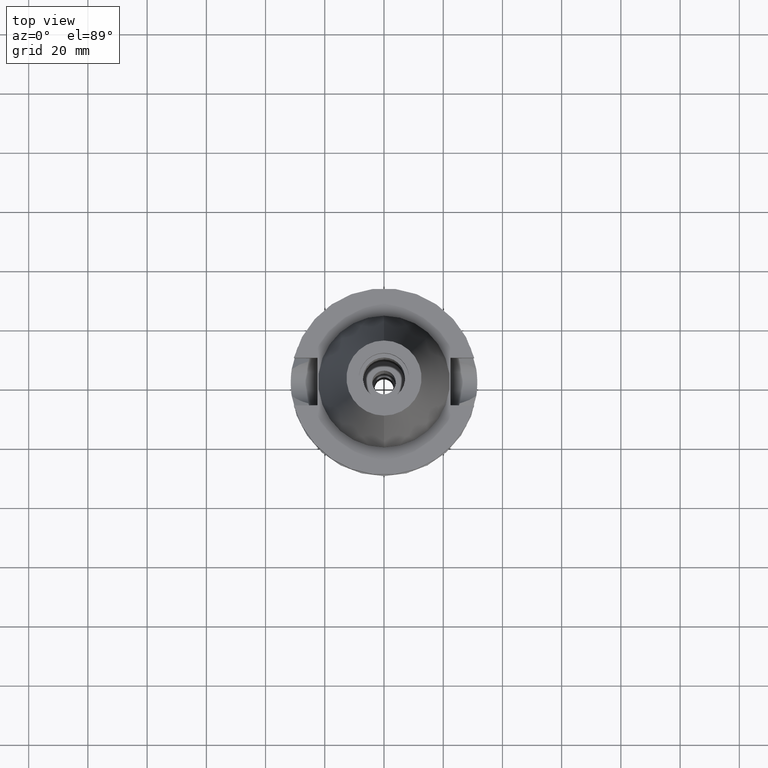
[diagram: clean part render]
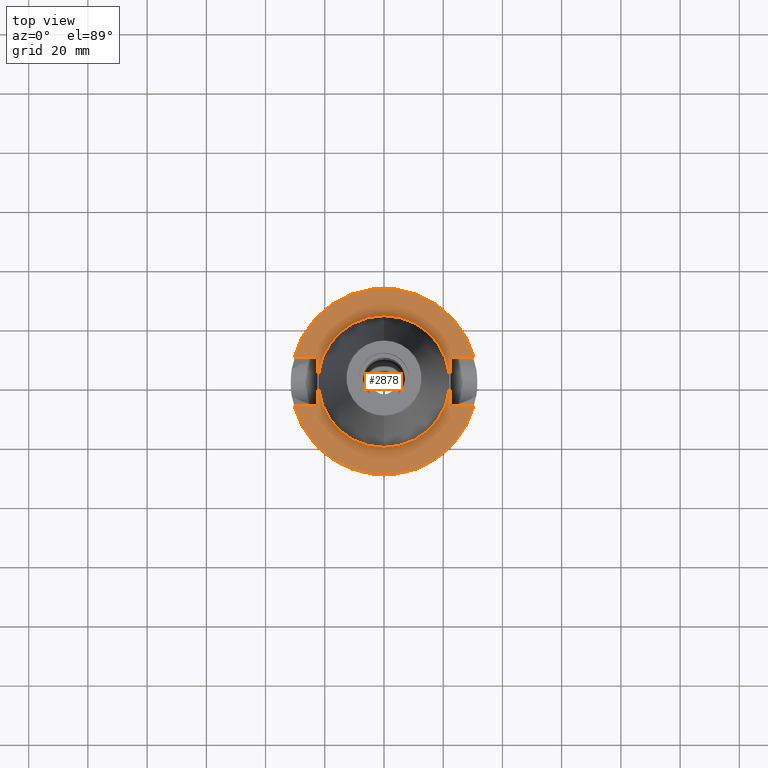
[diagram: same view with one face highlighted and labeled with its STEP entity id]
A machine part, top view. The second image highlights one B-rep face of the part: STEP entity #2878.
In plain terms, the highlighted planar face has unit normal (0, 0, -1).
Its self-contained STEP definition (entity closure, byte-faithful):
#113 = CIRCLE ( 'NONE', #1340, 22.22500000000000142 ) ;
#115 = EDGE_CURVE ( 'NONE', #835, #1891, #1197, .T. ) ;
#149 = ORIENTED_EDGE ( 'NONE', *, *, #3570, .T. ) ;
#204 = FACE_BOUND ( 'NONE', #3073, .T. ) ;
#222 = EDGE_CURVE ( 'NONE', #3625, #3260, #234, .T. ) ;
#234 = LINE ( 'NONE', #2678, #3585 ) ;
#252 = LINE ( 'NONE', #1075, #1988 ) ;
#257 = DIRECTION ( 'NONE',  ( 0.0000000000000000000, 0.0000000000000000000, -1.000000000000000000 ) ) ;
#428 = CARTESIAN_POINT ( 'NONE',  ( -22.50000000000000000, 8.050000000000000711, -2.000000000000000000 ) ) ;
#541 = DIRECTION ( 'NONE',  ( 0.0000000000000000000, 1.000000000000000000, 0.0000000000000000000 ) ) ;
#548 = DIRECTION ( 'NONE',  ( 0.0000000000000000000, 0.0000000000000000000, 1.000000000000000000 ) ) ;
#552 = ORIENTED_EDGE ( 'NONE', *, *, #222, .F. ) ;
#569 = VECTOR ( 'NONE', #1798, 1000.000000000000000 ) ;
#635 = DIRECTION ( 'NONE',  ( 0.0000000000000000000, 0.0000000000000000000, -1.000000000000000000 ) ) ;
#723 = ORIENTED_EDGE ( 'NONE', *, *, #754, .F. ) ;
#742 = ORIENTED_EDGE ( 'NONE', *, *, #2404, .F. ) ;
#754 = EDGE_CURVE ( 'NONE', #3260, #2262, #3112, .T. ) ;
#835 = VERTEX_POINT ( 'NONE', #2829 ) ;
#862 = VERTEX_POINT ( 'NONE', #949 ) ;
#909 = CARTESIAN_POINT ( 'NONE',  ( 30.45402272279000044, -8.050000000000000711, -2.000000000000000000 ) ) ;
#949 = CARTESIAN_POINT ( 'NONE',  ( 0.0000000000000000000, 22.22500000000000142, -2.000000000000000000 ) ) ;
#973 = EDGE_CURVE ( 'NONE', #1891, #1550, #1192, .T. ) ;
#1006 = DIRECTION ( 'NONE',  ( -1.000000000000000000, -3.550916904668000126E-14, 0.0000000000000000000 ) ) ;
#1058 = CARTESIAN_POINT ( 'NONE',  ( 0.0000000000000000000, 1.200153863163999924E-14, -2.000000000000000000 ) ) ;
#1075 = CARTESIAN_POINT ( 'NONE',  ( 22.50000000000000000, 8.050000000000000711, -2.000000000000000000 ) ) ;
#1084 = LINE ( 'NONE', #2212, #2506 ) ;
#1107 = AXIS2_PLACEMENT_3D ( 'NONE', #1058, #1637, #3306 ) ;
#1192 = LINE ( 'NONE', #3444, #3348 ) ;
#1197 = LINE ( 'NONE', #2328, #569 ) ;
#1216 = CARTESIAN_POINT ( 'NONE',  ( -30.45402272279000044, 8.050000000000000711, -2.000000000000000000 ) ) ;
#1283 = CARTESIAN_POINT ( 'NONE',  ( 0.0000000000000000000, 2.163583500053999606E-14, -2.000000000000000000 ) ) ;
#1292 = VERTEX_POINT ( 'NONE', #2928 ) ;
#1340 = AXIS2_PLACEMENT_3D ( 'NONE', #3325, #548, #1643 ) ;
#1365 = DIRECTION ( 'NONE',  ( 0.0000000000000000000, 1.000000000000000000, 0.0000000000000000000 ) ) ;
#1437 = EDGE_CURVE ( 'NONE', #1292, #3625, #3270, .T. ) ;
#1522 = AXIS2_PLACEMENT_3D ( 'NONE', #2773, #257, #1365 ) ;
#1550 = VERTEX_POINT ( 'NONE', #909 ) ;
#1637 = DIRECTION ( 'NONE',  ( 0.0000000000000000000, 0.0000000000000000000, -1.000000000000000000 ) ) ;
#1643 = DIRECTION ( 'NONE',  ( 0.0000000000000000000, -1.000000000000000000, 0.0000000000000000000 ) ) ;
#1798 = DIRECTION ( 'NONE',  ( 0.0000000000000000000, -1.000000000000000000, 0.0000000000000000000 ) ) ;
#1891 = VERTEX_POINT ( 'NONE', #2492 ) ;
#1931 = AXIS2_PLACEMENT_3D ( 'NONE', #3439, #635, #2319 ) ;
#1940 = CARTESIAN_POINT ( 'NONE',  ( -22.50000000000000000, -8.050000000000000711, -2.000000000000000000 ) ) ;
#1965 = VERTEX_POINT ( 'NONE', #2230 ) ;
#1988 = VECTOR ( 'NONE', #2204, 1000.000000000000000 ) ;
#2061 = EDGE_CURVE ( 'NONE', #1550, #1965, #3111, .T. ) ;
#2068 = DIRECTION ( 'NONE',  ( 1.000000000000000000, 3.573249715389999860E-14, 0.0000000000000000000 ) ) ;
#2145 = EDGE_LOOP ( 'NONE', ( #149, #2316, #2454, #3072, #2393, #723, #552, #2785 ) ) ;
#2204 = DIRECTION ( 'NONE',  ( 1.000000000000000000, -3.506251283225999947E-14, 0.0000000000000000000 ) ) ;
#2212 = CARTESIAN_POINT ( 'NONE',  ( -22.50000000000000000, -8.050000000000000711, -2.000000000000000000 ) ) ;
#2220 = CIRCLE ( 'NONE', #2467, 22.22500000000000142 ) ;
#2230 = CARTESIAN_POINT ( 'NONE',  ( -30.45402272279000044, -8.050000000000000711, -2.000000000000000000 ) ) ;
#2262 = VERTEX_POINT ( 'NONE', #2694 ) ;
#2283 = EDGE_CURVE ( 'NONE', #862, #2689, #2220, .T. ) ;
#2316 = ORIENTED_EDGE ( 'NONE', *, *, #2061, .F. ) ;
#2319 = DIRECTION ( 'NONE',  ( 0.0000000000000000000, -1.000000000000000000, 0.0000000000000000000 ) ) ;
#2328 = CARTESIAN_POINT ( 'NONE',  ( 22.50000000000000000, 8.050000000000000711, -2.000000000000000000 ) ) ;
#2393 = ORIENTED_EDGE ( 'NONE', *, *, #2465, .T. ) ;
#2404 = EDGE_CURVE ( 'NONE', #2689, #862, #113, .T. ) ;
#2417 = DIRECTION ( 'NONE',  ( 0.0000000000000000000, 0.0000000000000000000, 1.000000000000000000 ) ) ;
#2454 = ORIENTED_EDGE ( 'NONE', *, *, #973, .F. ) ;
#2465 = EDGE_CURVE ( 'NONE', #835, #2262, #252, .T. ) ;
#2467 = AXIS2_PLACEMENT_3D ( 'NONE', #1283, #2417, #3544 ) ;
#2492 = CARTESIAN_POINT ( 'NONE',  ( 22.50000000000000000, -8.050000000000000711, -2.000000000000000000 ) ) ;
#2506 = VECTOR ( 'NONE', #3337, 1000.000000000000000 ) ;
#2584 = VECTOR ( 'NONE', #541, 1000.000000000000000 ) ;
#2678 = CARTESIAN_POINT ( 'NONE',  ( -22.50000000000000000, 8.050000000000000711, -2.000000000000000000 ) ) ;
#2689 = VERTEX_POINT ( 'NONE', #2853 ) ;
#2694 = CARTESIAN_POINT ( 'NONE',  ( 30.45402272279000044, 8.050000000000000711, -2.000000000000000000 ) ) ;
#2773 = CARTESIAN_POINT ( 'NONE',  ( 0.0000000000000000000, 2.163583500053999606E-14, -2.000000000000000000 ) ) ;
#2785 = ORIENTED_EDGE ( 'NONE', *, *, #1437, .F. ) ;
#2829 = CARTESIAN_POINT ( 'NONE',  ( 22.50000000000000000, 8.050000000000000711, -2.000000000000000000 ) ) ;
#2853 = CARTESIAN_POINT ( 'NONE',  ( 0.0000000000000000000, -22.22500000000000142, -2.000000000000000000 ) ) ;
#2878 = ADVANCED_FACE ( 'NONE', ( #3037, #204 ), #3624, .F. ) ;
#2928 = CARTESIAN_POINT ( 'NONE',  ( -22.50000000000000000, -8.050000000000000711, -2.000000000000000000 ) ) ;
#3037 = FACE_OUTER_BOUND ( 'NONE', #2145, .T. ) ;
#3072 = ORIENTED_EDGE ( 'NONE', *, *, #115, .F. ) ;
#3073 = EDGE_LOOP ( 'NONE', ( #3238, #742 ) ) ;
#3111 = CIRCLE ( 'NONE', #1931, 31.50000000000000000 ) ;
#3112 = CIRCLE ( 'NONE', #1522, 31.50000000000000000 ) ;
#3238 = ORIENTED_EDGE ( 'NONE', *, *, #2283, .F. ) ;
#3260 = VERTEX_POINT ( 'NONE', #1216 ) ;
#3270 = LINE ( 'NONE', #1940, #2584 ) ;
#3306 = DIRECTION ( 'NONE',  ( 0.0000000000000000000, -1.000000000000000000, 0.0000000000000000000 ) ) ;
#3325 = CARTESIAN_POINT ( 'NONE',  ( 0.0000000000000000000, 2.163583500053999606E-14, -2.000000000000000000 ) ) ;
#3337 = DIRECTION ( 'NONE',  ( -1.000000000000000000, 3.550916904668000126E-14, 0.0000000000000000000 ) ) ;
#3348 = VECTOR ( 'NONE', #2068, 1000.000000000000000 ) ;
#3439 = CARTESIAN_POINT ( 'NONE',  ( 0.0000000000000000000, 2.163583500053999606E-14, -2.000000000000000000 ) ) ;
#3444 = CARTESIAN_POINT ( 'NONE',  ( 22.50000000000000000, -8.050000000000000711, -2.000000000000000000 ) ) ;
#3544 = DIRECTION ( 'NONE',  ( 0.0000000000000000000, 1.000000000000000000, 0.0000000000000000000 ) ) ;
#3570 = EDGE_CURVE ( 'NONE', #1292, #1965, #1084, .T. ) ;
#3585 = VECTOR ( 'NONE', #1006, 1000.000000000000000 ) ;
#3624 = PLANE ( 'NONE',  #1107 ) ;
#3625 = VERTEX_POINT ( 'NONE', #428 ) ;